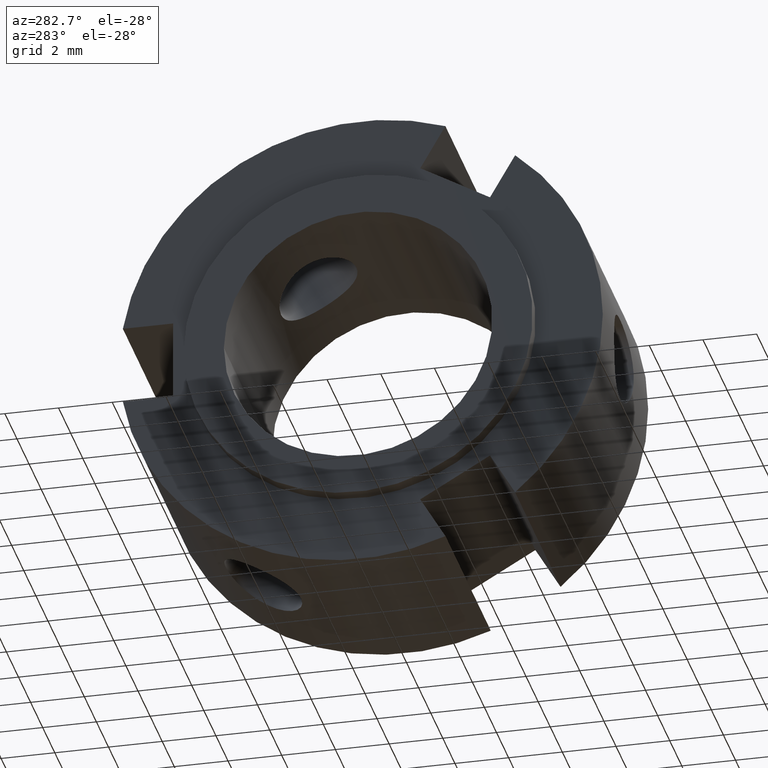
[diagram: clean part render]
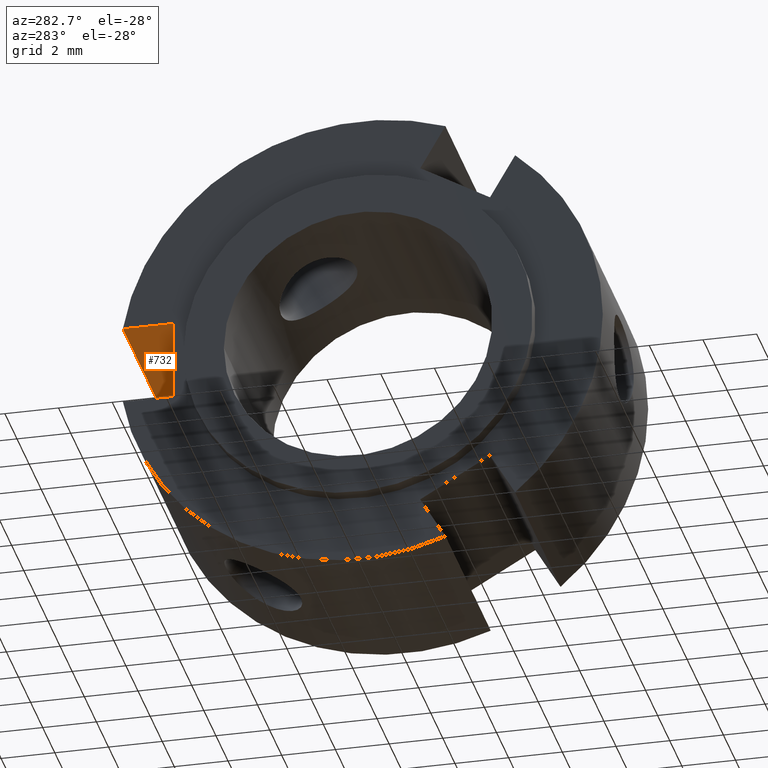
[diagram: same view with one face highlighted and labeled with its STEP entity id]
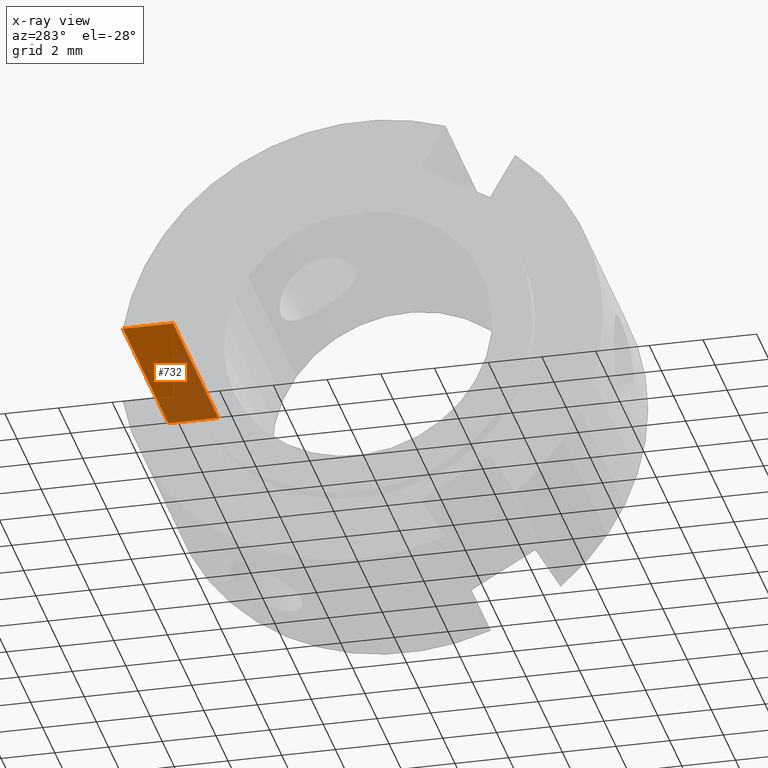
[diagram: x-ray of the same camera — body ghosted, the highlighted face saturated]
A machine part, auxiliary view. The second image highlights one B-rep face of the part: STEP entity #732.
The next image is the same camera in x-ray: the body ghosted, the highlighted face saturated — about 47% of this face is hidden behind the body in this view.
In plain terms, the highlighted planar face has unit normal (0, 0, 1).
Its self-contained STEP definition (entity closure, byte-faithful):
#473=CARTESIAN_POINT('',(7.999999999999997,6.999999999999997,1.500000000000000));
#474=VERTEX_POINT('',#473);
#481=CARTESIAN_POINT('',(7.999999999999997,8.874119674649421,1.500000000000000));
#482=VERTEX_POINT('',#481);
#483=CARTESIAN_POINT('',(7.999999999999997,6.999999999999997,1.500000000000000));
#484=DIRECTION('',(0.0,1.0,0.0));
#485=VECTOR('',#484,1.874119674649424);
#486=LINE('',#483,#485);
#487=EDGE_CURVE('',#474,#482,#486,.T.);
#527=CARTESIAN_POINT('',(0.499999999999998,8.874119674649421,1.500000000000000));
#528=VERTEX_POINT('',#527);
#529=CARTESIAN_POINT('',(7.999999999999997,8.874119674649421,1.500000000000000));
#530=DIRECTION('',(-1.0,0.0,0.0));
#531=VECTOR('',#530,7.499999999999999);
#532=LINE('',#529,#531);
#533=EDGE_CURVE('',#482,#528,#532,.T.);
#709=CARTESIAN_POINT('',(7.999999999999997,8.999999999999998,1.500000000000000));
#710=DIRECTION('',(0.0,0.0,1.0));
#711=DIRECTION('',(1.0,0.0,0.0));
#712=AXIS2_PLACEMENT_3D('',#709,#710,#711);
#713=PLANE('',#712);
#714=CARTESIAN_POINT('',(0.499999999999998,6.999999999999997,1.500000000000000));
#715=VERTEX_POINT('',#714);
#716=CARTESIAN_POINT('',(0.499999999999998,8.874119674649421,1.500000000000000));
#717=DIRECTION('',(0.0,-1.0,0.0));
#718=VECTOR('',#717,1.874119674649425);
#719=LINE('',#716,#718);
#720=EDGE_CURVE('',#528,#715,#719,.T.);
#721=ORIENTED_EDGE('',*,*,#720,.F.);
#722=ORIENTED_EDGE('',*,*,#533,.F.);
#723=ORIENTED_EDGE('',*,*,#487,.F.);
#724=CARTESIAN_POINT('',(7.999999999999997,6.999999999999997,1.500000000000000));
#725=DIRECTION('',(-1.0,0.0,0.0));
#726=VECTOR('',#725,7.499999999999999);
#727=LINE('',#724,#726);
#728=EDGE_CURVE('',#474,#715,#727,.T.);
#729=ORIENTED_EDGE('',*,*,#728,.T.);
#730=EDGE_LOOP('',(#721,#722,#723,#729));
#731=FACE_OUTER_BOUND('',#730,.T.);
#732=ADVANCED_FACE('',(#731),#713,.F.);